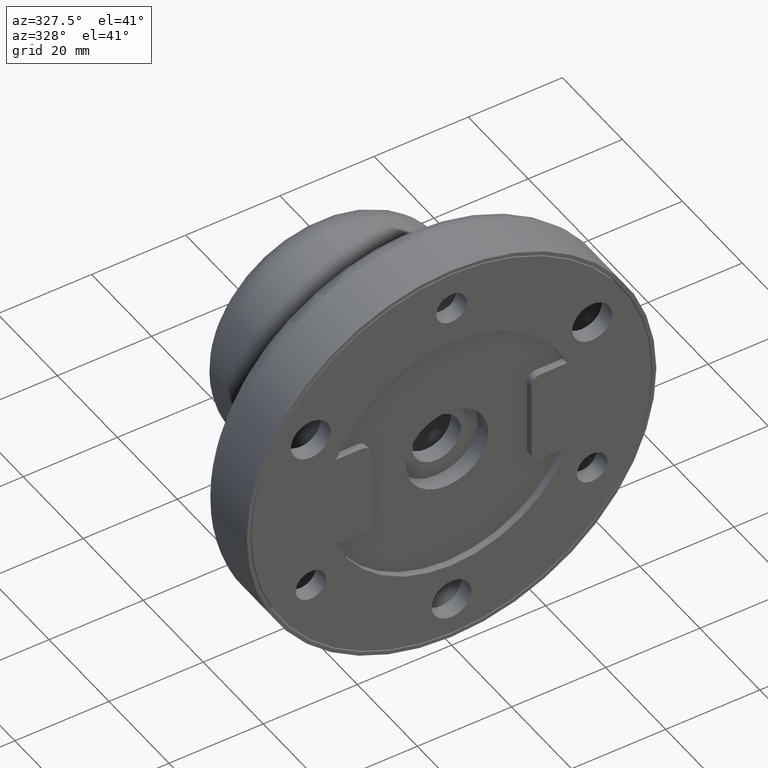
[diagram: clean part render]
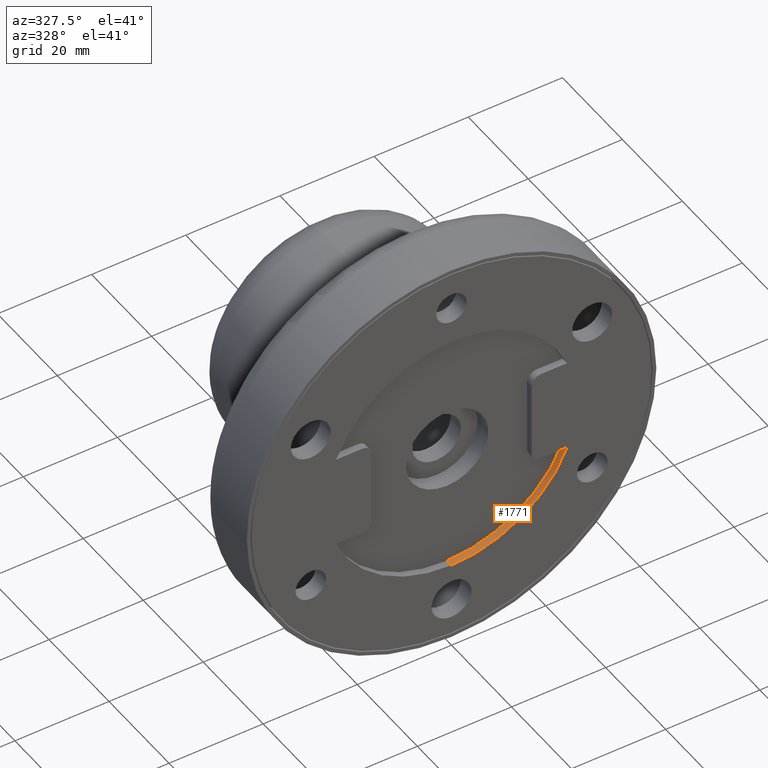
[diagram: same view with one face highlighted and labeled with its STEP entity id]
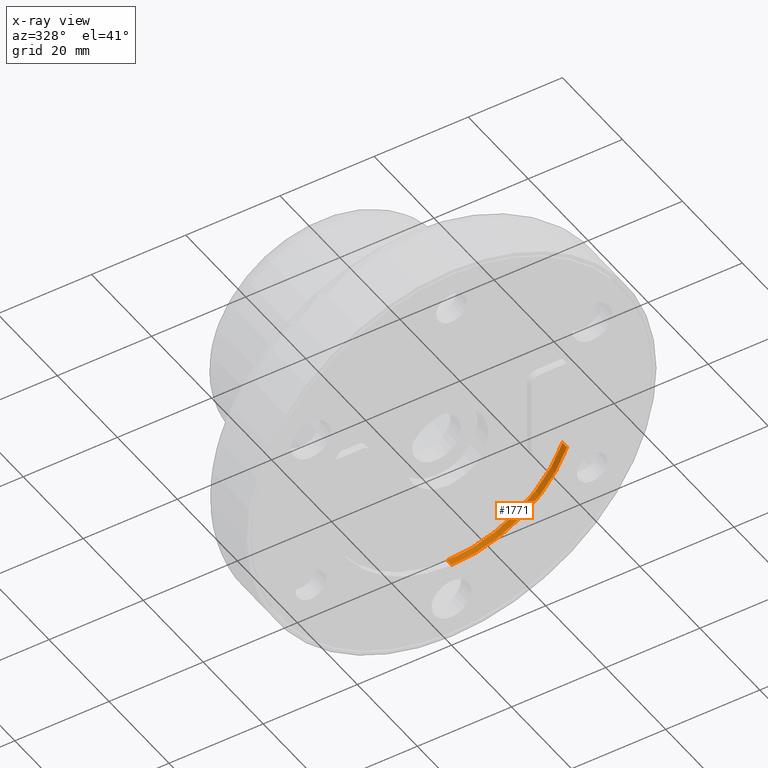
[diagram: x-ray of the same camera — body ghosted, the highlighted face saturated]
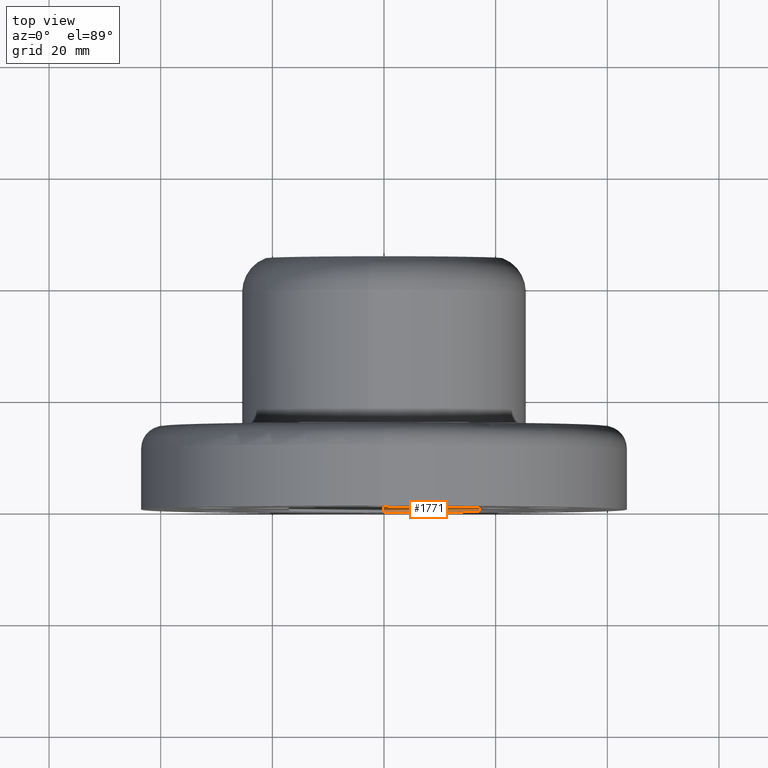
[diagram: same view with one face highlighted and labeled with its STEP entity id]
A machine part, auxiliary view. The second image highlights one B-rep face of the part: STEP entity #1771.
The next image is the same camera in x-ray: the body ghosted, the highlighted face saturated — about 0% of this face is hidden behind the body in this view.
A second angle (top view) of the same face is appended — the face is thin or edge-on in the first view.
In plain terms, the highlighted cylindrical surface (partial cylindrical patch) has radius 26.5 mm, axis along (-0, -1, -0).
Its self-contained STEP definition (entity closure, byte-faithful):
#370 = VERTEX_POINT ( 'NONE', #2541 ) ;
#419 = ORIENTED_EDGE ( 'NONE', *, *, #2482, .T. ) ;
#512 = DIRECTION ( 'NONE',  ( 0.0000000000000000000, 0.0000000000000000000, -1.000000000000000000 ) ) ;
#562 = DIRECTION ( 'NONE',  ( 0.0000000000000000000, 0.0000000000000000000, -1.000000000000000000 ) ) ;
#683 = DIRECTION ( 'NONE',  ( -0.0000000000000000000, -1.000000000000000000, -0.0000000000000000000 ) ) ;
#686 = CARTESIAN_POINT ( 'NONE',  ( 24.54078238361605500, 1.500000000000000000, -10.00000000000000000 ) ) ;
#695 = CARTESIAN_POINT ( 'NONE',  ( 24.54078238361605500, 1.500000000000000000, -10.00000000000000000 ) ) ;
#737 = CYLINDRICAL_SURFACE ( 'NONE', #850, 26.50000000000000400 ) ;
#838 = VERTEX_POINT ( 'NONE', #686 ) ;
#850 = AXIS2_PLACEMENT_3D ( 'NONE', #2105, #2634, #512 ) ;
#882 = EDGE_CURVE ( 'NONE', #1801, #370, #1995, .T. ) ;
#883 = ORIENTED_EDGE ( 'NONE', *, *, #1028, .F. ) ;
#1028 = EDGE_CURVE ( 'NONE', #1801, #838, #1150, .T. ) ;
#1150 = CIRCLE ( 'NONE', #1859, 26.50000000000000400 ) ;
#1243 = ORIENTED_EDGE ( 'NONE', *, *, #882, .T. ) ;
#1245 = EDGE_LOOP ( 'NONE', ( #883, #1243, #419, #3422 ) ) ;
#1607 = AXIS2_PLACEMENT_3D ( 'NONE', #3246, #1879, #562 ) ;
#1690 = EDGE_CURVE ( 'NONE', #838, #2998, #2430, .T. ) ;
#1703 = FACE_OUTER_BOUND ( 'NONE', #1245, .T. ) ;
#1745 = VECTOR ( 'NONE', #683, 1000.000000000000000 ) ;
#1771 = ADVANCED_FACE ( 'NONE', ( #1703 ), #737, .F. ) ;
#1801 = VERTEX_POINT ( 'NONE', #1904 ) ;
#1850 = CARTESIAN_POINT ( 'NONE',  ( 24.54078238361605500, 0.0000000000000000000, -10.00000000000000000 ) ) ;
#1859 = AXIS2_PLACEMENT_3D ( 'NONE', #1967, #3006, #2462 ) ;
#1879 = DIRECTION ( 'NONE',  ( 0.0000000000000000000, -1.000000000000000000, 0.0000000000000000000 ) ) ;
#1904 = CARTESIAN_POINT ( 'NONE',  ( 0.0000000000000000000, 1.500000000000000000, -26.50000000000000400 ) ) ;
#1967 = CARTESIAN_POINT ( 'NONE',  ( 0.0000000000000000000, 1.500000000000000000, 0.0000000000000000000 ) ) ;
#1995 = LINE ( 'NONE', #3088, #3207 ) ;
#2105 = CARTESIAN_POINT ( 'NONE',  ( 0.0000000000000000000, 1.500000000000000000, 0.0000000000000000000 ) ) ;
#2430 = LINE ( 'NONE', #695, #1745 ) ;
#2462 = DIRECTION ( 'NONE',  ( 0.0000000000000000000, 0.0000000000000000000, -1.000000000000000000 ) ) ;
#2482 = EDGE_CURVE ( 'NONE', #370, #2998, #2896, .T. ) ;
#2541 = CARTESIAN_POINT ( 'NONE',  ( 0.0000000000000000000, 0.0000000000000000000, -26.50000000000000400 ) ) ;
#2634 = DIRECTION ( 'NONE',  ( -0.0000000000000000000, -1.000000000000000000, -0.0000000000000000000 ) ) ;
#2840 = DIRECTION ( 'NONE',  ( -0.0000000000000000000, -1.000000000000000000, -0.0000000000000000000 ) ) ;
#2896 = CIRCLE ( 'NONE', #1607, 26.50000000000000400 ) ;
#2998 = VERTEX_POINT ( 'NONE', #1850 ) ;
#3006 = DIRECTION ( 'NONE',  ( 0.0000000000000000000, -1.000000000000000000, 0.0000000000000000000 ) ) ;
#3088 = CARTESIAN_POINT ( 'NONE',  ( 0.0000000000000000000, 1.500000000000000000, -26.50000000000000400 ) ) ;
#3207 = VECTOR ( 'NONE', #2840, 1000.000000000000000 ) ;
#3246 = CARTESIAN_POINT ( 'NONE',  ( 0.0000000000000000000, 0.0000000000000000000, 0.0000000000000000000 ) ) ;
#3422 = ORIENTED_EDGE ( 'NONE', *, *, #1690, .F. ) ;